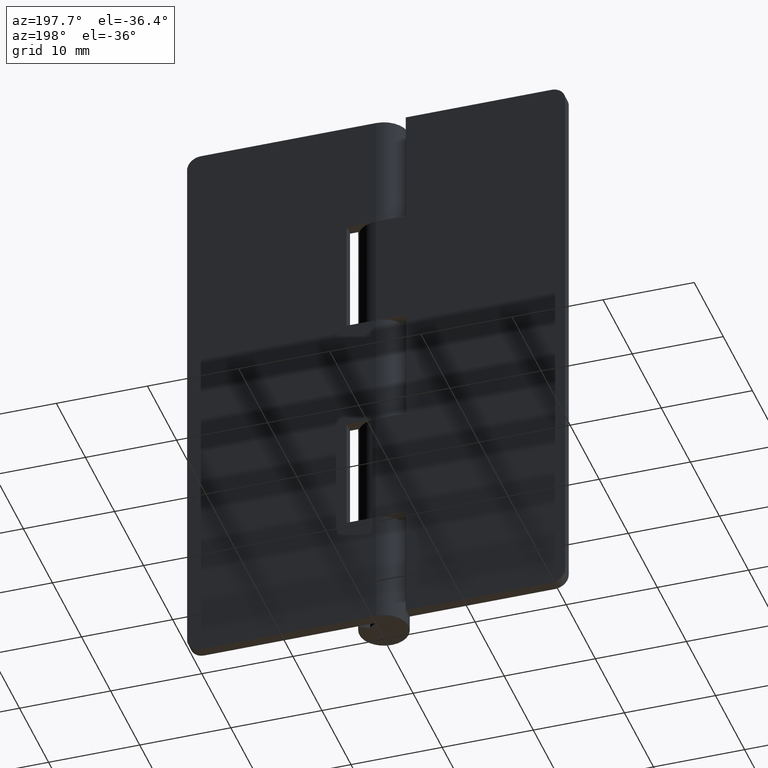
[diagram: clean part render]
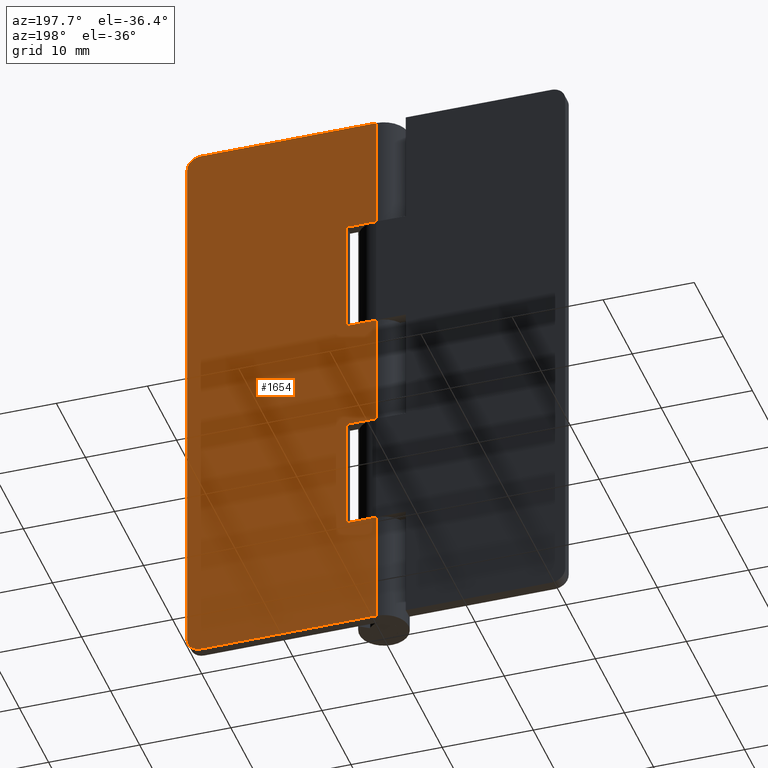
[diagram: same view with one face highlighted and labeled with its STEP entity id]
A machine part, auxiliary view. The second image highlights one B-rep face of the part: STEP entity #1654.
In plain terms, the highlighted face is a freeform B-spline surface patch.
Its self-contained STEP definition (entity closure, byte-faithful):
#885=CARTESIAN_POINT('',(19.250000000000000,2.700001000000000,63.999992000000013));
#886=VERTEX_POINT('',#885);
#887=CARTESIAN_POINT('',(20.750000000000000,2.700001000000000,62.499991999999999));
#888=VERTEX_POINT('',#887);
#889=CARTESIAN_POINT('',(19.250000000000000,2.700001000000000,63.999991999999992));
#890=CARTESIAN_POINT('',(20.749999999999996,2.700001000000000,63.999991999999992));
#891=CARTESIAN_POINT('',(20.750000000000000,2.700001000000000,62.499991999999999));
#899=(BOUNDED_CURVE()B_SPLINE_CURVE(2,(#889,#890,#891),.UNSPECIFIED.,.F.,.U.)CURVE()GEOMETRIC_REPRESENTATION_ITEM()QUASI_UNIFORM_CURVE()RATIONAL_B_SPLINE_CURVE((1.0,0.707106781186548,1.0))REPRESENTATION_ITEM(''));
#900=EDGE_CURVE('',#886,#888,#899,.T.);
#946=CARTESIAN_POINT('',(20.750000000000000,2.700001000000000,1.499999999999946));
#947=VERTEX_POINT('',#946);
#948=CARTESIAN_POINT('',(19.250000000000000,2.700001000000000,0.0));
#949=VERTEX_POINT('',#948);
#950=CARTESIAN_POINT('',(20.750000000000000,2.700001000000000,1.499999999999946));
#951=CARTESIAN_POINT('',(20.749999999999996,2.700001000000000,0.0));
#952=CARTESIAN_POINT('',(19.250000000000000,2.700001000000000,0.0));
#960=(BOUNDED_CURVE()B_SPLINE_CURVE(2,(#950,#951,#952),.UNSPECIFIED.,.F.,.U.)CURVE()GEOMETRIC_REPRESENTATION_ITEM()QUASI_UNIFORM_CURVE()RATIONAL_B_SPLINE_CURVE((1.0,0.707106781186548,1.0))REPRESENTATION_ITEM(''));
#961=EDGE_CURVE('',#947,#949,#960,.T.);
#1000=CARTESIAN_POINT('',(-4.959643E-016,2.700001000000000,25.600006000000000));
#1001=VERTEX_POINT('',#1000);
#1021=CARTESIAN_POINT('',(3.250000000000000,2.700001000000000,25.600006000000000));
#1022=VERTEX_POINT('',#1021);
#1023=CARTESIAN_POINT('',(3.250000000000000,2.700001000000000,25.600006000000000));
#1024=CARTESIAN_POINT('',(-4.959643E-016,2.700001000000000,25.600006000000000));
#1025=QUASI_UNIFORM_CURVE('',1,(#1023,#1024),.UNSPECIFIED.,.F.,.U.);
#1026=EDGE_CURVE('',#1022,#1001,#1025,.T.);
#1084=CARTESIAN_POINT('',(3.250000000000000,2.700001000000000,12.800003000000000));
#1085=VERTEX_POINT('',#1084);
#1086=CARTESIAN_POINT('',(3.250000000000000,2.700001000000000,12.800003000000000));
#1087=CARTESIAN_POINT('',(3.250000000000000,2.700001000000000,25.600006000000000));
#1088=QUASI_UNIFORM_CURVE('',1,(#1086,#1087),.UNSPECIFIED.,.F.,.U.);
#1089=EDGE_CURVE('',#1085,#1022,#1088,.T.);
#1104=CARTESIAN_POINT('',(-4.959643E-016,2.700001000000000,12.800003000000000));
#1105=VERTEX_POINT('',#1104);
#1161=CARTESIAN_POINT('',(-4.959643E-016,2.700001000000000,12.800003000000000));
#1162=CARTESIAN_POINT('',(3.250000000000000,2.700001000000000,12.800003000000000));
#1163=QUASI_UNIFORM_CURVE('',1,(#1161,#1162),.UNSPECIFIED.,.F.,.U.);
#1164=EDGE_CURVE('',#1105,#1085,#1163,.T.);
#1183=CARTESIAN_POINT('',(3.250000000000000,2.700001000000000,38.399985999999998));
#1184=VERTEX_POINT('',#1183);
#1190=CARTESIAN_POINT('',(-4.959658E-016,2.700001000000000,38.399985999999963));
#1191=VERTEX_POINT('',#1190);
#1192=CARTESIAN_POINT('',(3.250000000000000,2.700001000000000,38.399985999999998));
#1193=CARTESIAN_POINT('',(-4.959658E-016,2.700001000000000,38.399985999999963));
#1194=QUASI_UNIFORM_CURVE('',1,(#1192,#1193),.UNSPECIFIED.,.F.,.U.);
#1195=EDGE_CURVE('',#1184,#1191,#1194,.T.);
#1259=CARTESIAN_POINT('',(3.250000000000000,2.700001000000000,51.199989000000002));
#1260=VERTEX_POINT('',#1259);
#1266=CARTESIAN_POINT('',(3.250000000000000,2.700001000000000,51.199989000000002));
#1267=CARTESIAN_POINT('',(3.250000000000000,2.700001000000000,38.399985999999998));
#1268=QUASI_UNIFORM_CURVE('',1,(#1266,#1267),.UNSPECIFIED.,.F.,.U.);
#1269=EDGE_CURVE('',#1260,#1184,#1268,.T.);
#1315=CARTESIAN_POINT('',(0.0,2.700001000000000,51.199989000000002));
#1316=VERTEX_POINT('',#1315);
#1336=CARTESIAN_POINT('',(0.0,2.700001000000000,51.199989000000002));
#1337=CARTESIAN_POINT('',(3.250000000000000,2.700001000000000,51.199989000000002));
#1338=QUASI_UNIFORM_CURVE('',1,(#1336,#1337),.UNSPECIFIED.,.F.,.U.);
#1339=EDGE_CURVE('',#1316,#1260,#1338,.T.);
#1350=CARTESIAN_POINT('',(-4.959658E-016,2.700001000000000,0.0));
#1351=VERTEX_POINT('',#1350);
#1352=CARTESIAN_POINT('',(-4.959658E-016,2.700001000000000,0.0));
#1353=CARTESIAN_POINT('',(19.250000000000000,2.700001000000000,0.0));
#1354=QUASI_UNIFORM_CURVE('',1,(#1352,#1353),.UNSPECIFIED.,.F.,.U.);
#1355=EDGE_CURVE('',#1351,#949,#1354,.T.);
#1428=CARTESIAN_POINT('',(-4.959658E-016,2.700001000000000,63.999992000000113));
#1429=VERTEX_POINT('',#1428);
#1430=CARTESIAN_POINT('',(-4.959658E-016,2.700001000000000,63.999992000000113));
#1431=CARTESIAN_POINT('',(19.250000000000000,2.700001000000000,63.999992000000013));
#1432=QUASI_UNIFORM_CURVE('',1,(#1430,#1431),.UNSPECIFIED.,.F.,.U.);
#1433=EDGE_CURVE('',#1429,#886,#1432,.T.);
#1507=CARTESIAN_POINT('',(-4.959658E-016,2.700001000000000,63.999992000000113));
#1508=CARTESIAN_POINT('',(0.0,2.700001000000000,51.199989000000002));
#1509=QUASI_UNIFORM_CURVE('',1,(#1507,#1508),.UNSPECIFIED.,.F.,.U.);
#1510=EDGE_CURVE('',#1429,#1316,#1509,.T.);
#1616=CARTESIAN_POINT('',(20.750000000000000,2.700001000000000,62.499991999999999));
#1617=CARTESIAN_POINT('',(20.750000000000000,2.700001000000000,1.499999999999946));
#1618=QUASI_UNIFORM_CURVE('',1,(#1616,#1617),.UNSPECIFIED.,.F.,.U.);
#1619=EDGE_CURVE('',#888,#947,#1618,.T.);
#1625=CARTESIAN_POINT('',(-1.036462459782472,2.700001000000000,-3.196799476355603));
#1626=CARTESIAN_POINT('',(-1.036462459782472,2.700001000000000,67.196793192969267));
#1627=CARTESIAN_POINT('',(21.786463016340839,2.700001000000000,-3.196799476355603));
#1628=CARTESIAN_POINT('',(21.786463016340839,2.700001000000000,67.196793192969267));
#1629=B_SPLINE_SURFACE_WITH_KNOTS('',1,1,((#1625,#1627),(#1626,#1628)),.UNSPECIFIED.,.F.,.F.,.U.,(2,2),(2,2),(0.0,70.393592669324875),(0.0,22.822925476123309),.UNSPECIFIED.);
#1630=ORIENTED_EDGE('',*,*,#1619,.T.);
#1631=ORIENTED_EDGE('',*,*,#961,.T.);
#1632=ORIENTED_EDGE('',*,*,#1355,.F.);
#1633=CARTESIAN_POINT('',(-4.959643E-016,2.700001000000000,12.800003000000000));
#1634=CARTESIAN_POINT('',(-4.959658E-016,2.700001000000000,0.0));
#1635=QUASI_UNIFORM_CURVE('',1,(#1633,#1634),.UNSPECIFIED.,.F.,.U.);
#1636=EDGE_CURVE('',#1105,#1351,#1635,.T.);
#1637=ORIENTED_EDGE('',*,*,#1636,.F.);
#1638=ORIENTED_EDGE('',*,*,#1164,.T.);
#1639=ORIENTED_EDGE('',*,*,#1089,.T.);
#1640=ORIENTED_EDGE('',*,*,#1026,.T.);
#1641=CARTESIAN_POINT('',(-4.959658E-016,2.700001000000000,38.399985999999963));
#1642=CARTESIAN_POINT('',(-4.959643E-016,2.700001000000000,25.600006000000000));
#1643=QUASI_UNIFORM_CURVE('',1,(#1641,#1642),.UNSPECIFIED.,.F.,.U.);
#1644=EDGE_CURVE('',#1191,#1001,#1643,.T.);
#1645=ORIENTED_EDGE('',*,*,#1644,.F.);
#1646=ORIENTED_EDGE('',*,*,#1195,.F.);
#1647=ORIENTED_EDGE('',*,*,#1269,.F.);
#1648=ORIENTED_EDGE('',*,*,#1339,.F.);
#1649=ORIENTED_EDGE('',*,*,#1510,.F.);
#1650=ORIENTED_EDGE('',*,*,#1433,.T.);
#1651=ORIENTED_EDGE('',*,*,#900,.T.);
#1652=EDGE_LOOP('',(#1630,#1631,#1632,#1637,#1638,#1639,#1640,#1645,#1646,#1647,#1648,#1649,#1650,#1651));
#1653=FACE_OUTER_BOUND('',#1652,.T.);
#1654=ADVANCED_FACE('',(#1653),#1629,.T.);